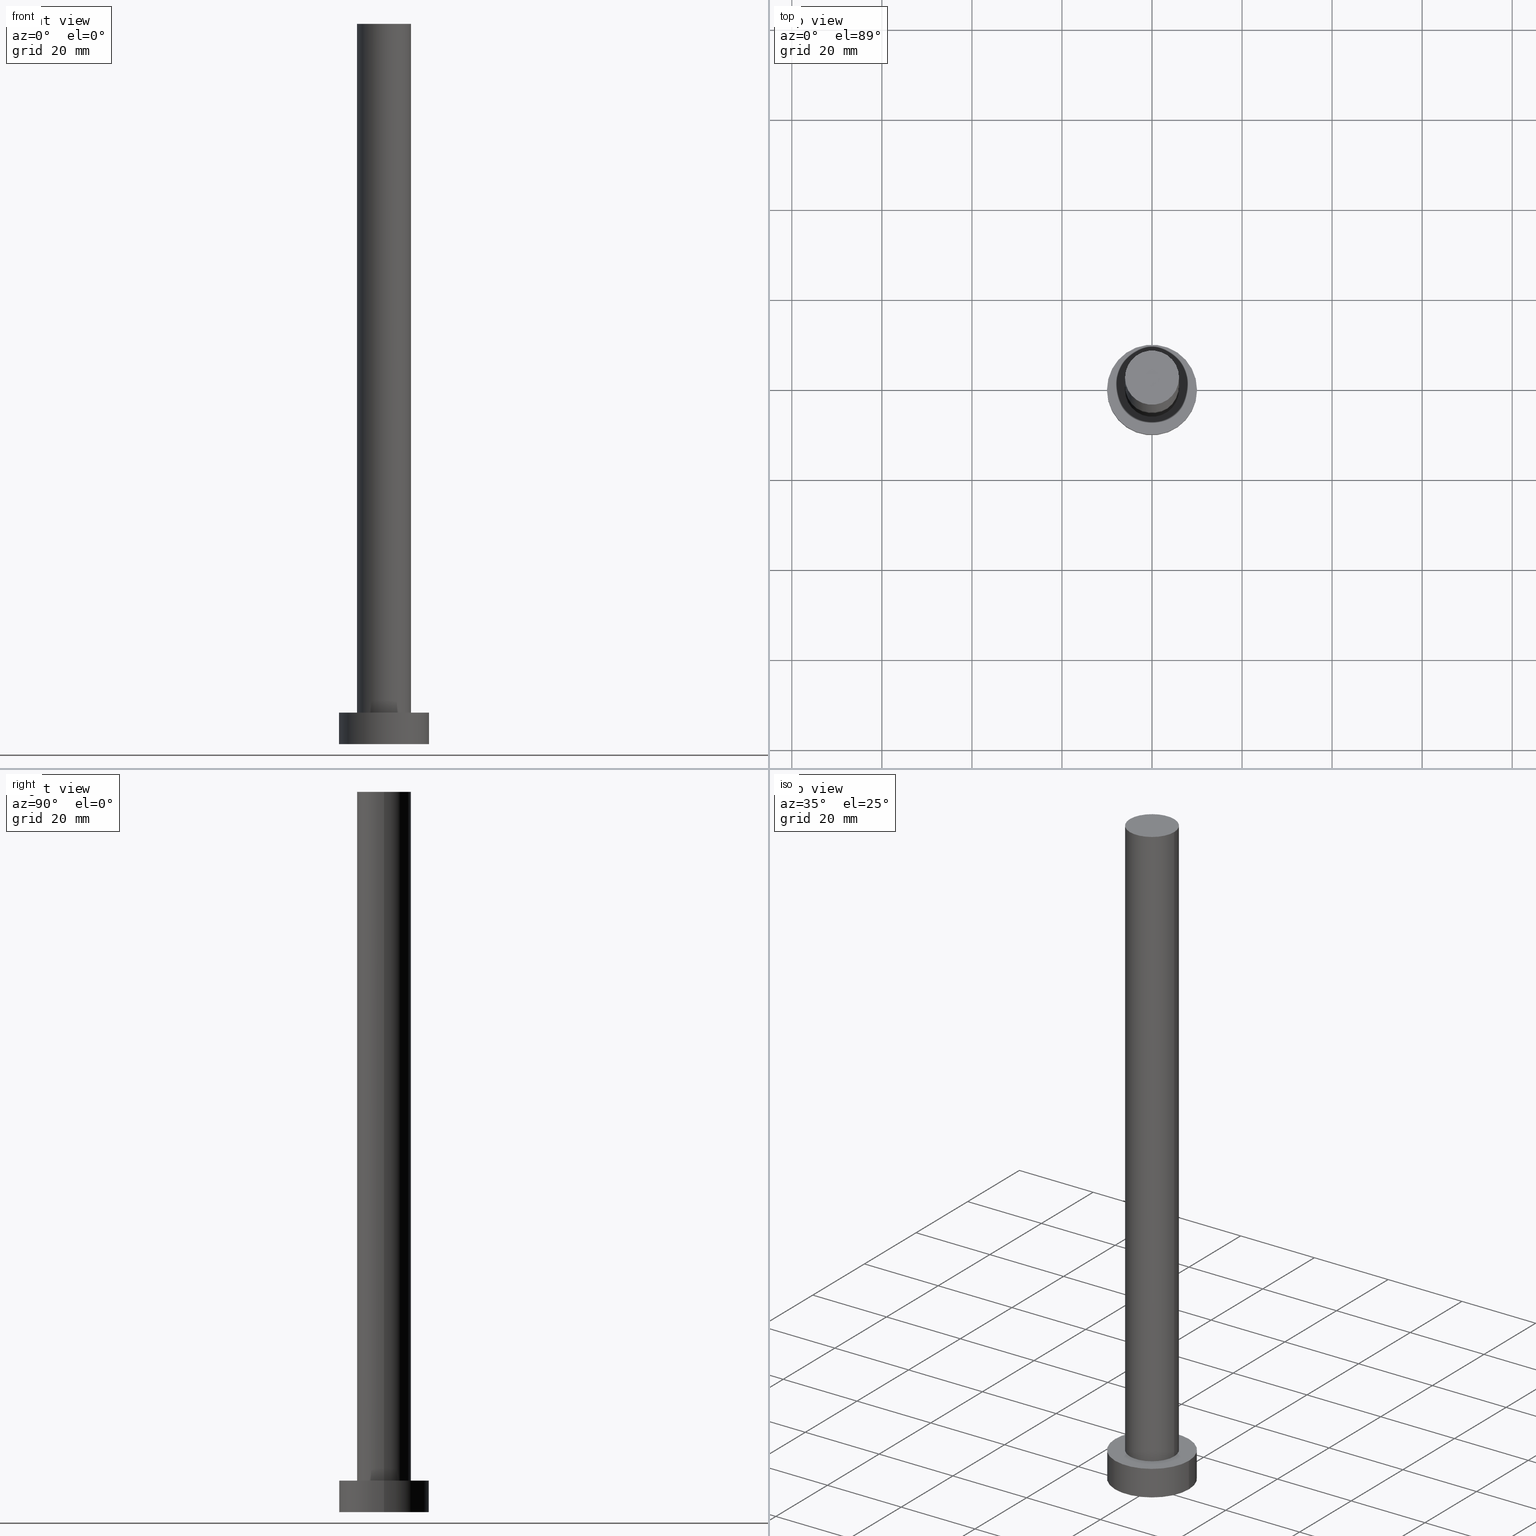
[diagram: canonical four-view strip — front | top / right | iso, engineering-drawing reading convention]
A machine part, canonical four-view strip (front | top / right | iso — engineering-drawing reading convention). The complete STEP part file that produces these views, byte-faithful:
ISO-10303-21;
HEADER;
FILE_DESCRIPTION (( 'STEP AP203' ),
    '1' );
FILE_NAME ('d720.STEP',
    '2023-02-13T10:20:29',
    ( '' ),
    ( '' ),
    'SwSTEP 2.0',
    'SolidWorks 2019',
    '' );
FILE_SCHEMA (( 'CONFIG_CONTROL_DESIGN' ));
ENDSEC;

DATA;
#1 = APPROVAL_STATUS ( 'not_yet_approved' ) ;
#2 = APPROVAL_PERSON_ORGANIZATION ( #26, #76, #180 ) ;
#3 = APPLICATION_PROTOCOL_DEFINITION ( 'international standard', 'config_control_design', 1994, #116 ) ;
#4 = EDGE_CURVE ( 'NONE', #73, #37, #68, .T. ) ;
#5 = ADVANCED_BREP_SHAPE_REPRESENTATION ( 'd720', ( #209, #8 ), #221 ) ;
#6 = ORIENTED_EDGE ( 'NONE', *, *, #193, .T. ) ;
#7 = CIRCLE ( 'NONE', #80, 10.00000000000000000 ) ;
#8 = AXIS2_PLACEMENT_3D ( 'NONE', #204, #49, #47 ) ;
#9 = ORIENTED_EDGE ( 'NONE', *, *, #122, .T. ) ;
#10 = LOCAL_TIME ( 11, 20, 29.00000000000000000, #214 ) ;
#11 = ORIENTED_EDGE ( 'NONE', *, *, #157, .F. ) ;
#12 = ORIENTED_EDGE ( 'NONE', *, *, #110, .F. ) ;
#13 = EDGE_CURVE ( 'NONE', #92, #37, #130, .T. ) ;
#14 = DIRECTION ( 'NONE',  ( 1.000000000000000000, 0.000000000000000000, 0.000000000000000000 ) ) ;
#15 = SECURITY_CLASSIFICATION_LEVEL ( 'unclassified' ) ;
#16 = FACE_OUTER_BOUND ( 'NONE', #248, .T. ) ;
#17 = PERSON_AND_ORGANIZATION_ROLE ( 'creator' ) ;
#18 = PRODUCT_DEFINITION ( 'NEZN�M�', '', #159, #141 ) ;
#19 = DIRECTION ( 'NONE',  ( 1.000000000000000000, 0.000000000000000000, 0.000000000000000000 ) ) ;
#20 = UNCERTAINTY_MEASURE_WITH_UNIT (LENGTH_MEASURE( 1.000000000000000082E-05 ), #163, 'distance_accuracy_value', 'NONE');
#21 = DIRECTION ( 'NONE',  ( 1.000000000000000000, 0.000000000000000000, -0.000000000000000000 ) ) ;
#22 = CIRCLE ( 'NONE', #55, 6.000000000000000888 ) ;
#23 = APPROVAL_PERSON_ORGANIZATION ( #196, #207, #201 ) ;
#24 = DIRECTION ( 'NONE',  ( 0.000000000000000000, 0.000000000000000000, 1.000000000000000000 ) ) ;
#25 = PERSON_AND_ORGANIZATION_ROLE ( 'classification_officer' ) ;
#26 = PERSON_AND_ORGANIZATION ( #243, #31 ) ;
#27 = APPROVAL_STATUS ( 'not_yet_approved' ) ;
#28 = DIRECTION ( 'NONE',  ( -0.000000000000000000, -0.000000000000000000, -1.000000000000000000 ) ) ;
#29 = EDGE_CURVE ( 'NONE', #108, #170, #7, .T. ) ;
#30 = CIRCLE ( 'NONE', #174, 6.000000000000000888 ) ;
#31 = ORGANIZATION ( 'NEUR�EN�', 'NEUR�EN�', '' ) ;
#32 = CC_DESIGN_PERSON_AND_ORGANIZATION_ASSIGNMENT ( #135, #235, ( #159 ) ) ;
#33 = EDGE_LOOP ( 'NONE', ( #228, #152, #6, #250 ) ) ;
#34 = ORIENTED_EDGE ( 'NONE', *, *, #102, .F. ) ;
#35 = DIRECTION ( 'NONE',  ( 0.000000000000000000, 0.000000000000000000, 1.000000000000000000 ) ) ;
#37 = VERTEX_POINT ( 'NONE', #96 ) ;
#36 = EDGE_CURVE ( 'NONE', #72, #185, #244, .T. ) ;
#38 = DIRECTION ( 'NONE',  ( 0.000000000000000000, 0.000000000000000000, 1.000000000000000000 ) ) ;
#39 = DIRECTION ( 'NONE',  ( 1.000000000000000000, 0.000000000000000000, -0.000000000000000000 ) ) ;
#40 = COORDINATED_UNIVERSAL_TIME_OFFSET ( 1, 0, .AHEAD. ) ;
#41 = PLANE ( 'NONE',  #165 ) ;
#42 = DIRECTION ( 'NONE',  ( -0.000000000000000000, -0.000000000000000000, -1.000000000000000000 ) ) ;
#43 = ADVANCED_FACE ( 'NONE', ( #16 ), #175, .F. ) ;
#44 = CALENDAR_DATE ( 2023, 13, 2 ) ;
#45 = DATE_TIME_ROLE ( 'classification_date' ) ;
#46 = PRODUCT_RELATED_PRODUCT_CATEGORY ( 'detail', '', ( #188 ) ) ;
#47 = DIRECTION ( 'NONE',  ( 1.000000000000000000, 0.000000000000000000, 0.000000000000000000 ) ) ;
#48 = AXIS2_PLACEMENT_3D ( 'NONE', #99, #176, #253 ) ;
#49 = DIRECTION ( 'NONE',  ( 0.000000000000000000, 0.000000000000000000, 1.000000000000000000 ) ) ;
#50 = EDGE_LOOP ( 'NONE', ( #249, #230, #54, #148 ) ) ;
#51 = DIRECTION ( 'NONE',  ( 0.000000000000000000, 0.000000000000000000, 1.000000000000000000 ) ) ;
#52 = CC_DESIGN_PERSON_AND_ORGANIZATION_ASSIGNMENT ( #219, #17, ( #18 ) ) ;
#53 = ORIENTED_EDGE ( 'NONE', *, *, #66, .T. ) ;
#54 = ORIENTED_EDGE ( 'NONE', *, *, #4, .T. ) ;
#55 = AXIS2_PLACEMENT_3D ( 'NONE', #238, #38, #115 ) ;
#56 = ADVANCED_FACE ( 'NONE', ( #103, #123 ), #41, .T. ) ;
#57 = CC_DESIGN_APPROVAL ( #93, ( #161 ) ) ;
#58 = ORIENTED_EDGE ( 'NONE', *, *, #29, .F. ) ;
#59 = CARTESIAN_POINT ( 'NONE',  ( 0.000000000000000000, 0.000000000000000000, 160.0000000000000000 ) ) ;
#60 = CARTESIAN_POINT ( 'NONE',  ( 0.000000000000000000, 0.000000000000000000, 7.000000000000000000 ) ) ;
#61 = DATE_AND_TIME ( #145, #187 ) ;
#62 = FACE_OUTER_BOUND ( 'NONE', #50, .T. ) ;
#63 = DIRECTION ( 'NONE',  ( 1.000000000000000000, 0.000000000000000000, 0.000000000000000000 ) ) ;
#64 = LINE ( 'NONE', #154, #65 ) ;
#65 = VECTOR ( 'NONE', #42, 1000.000000000000000 ) ;
#66 = EDGE_CURVE ( 'NONE', #92, #206, #30, .T. ) ;
#67 = PERSON_AND_ORGANIZATION_ROLE ( 'design_supplier' ) ;
#68 = CIRCLE ( 'NONE', #143, 6.000000000000000888 ) ;
#69 = PERSON_AND_ORGANIZATION ( #243, #31 ) ;
#70 = CARTESIAN_POINT ( 'NONE',  ( 0.000000000000000000, 0.000000000000000000, 7.000000000000000000 ) ) ;
#71 = ORIENTED_EDGE ( 'NONE', *, *, #146, .F. ) ;
#72 = VERTEX_POINT ( 'NONE', #255 ) ;
#73 = VERTEX_POINT ( 'NONE', #162 ) ;
#74 = EDGE_LOOP ( 'NONE', ( #12, #169 ) ) ;
#75 = DIRECTION ( 'NONE',  ( 0.000000000000000000, 0.000000000000000000, 1.000000000000000000 ) ) ;
#76 = APPROVAL ( #155, 'NEUR�EN�' ) ;
#77 = DIRECTION ( 'NONE',  ( 1.000000000000000000, 0.000000000000000000, 0.000000000000000000 ) ) ;
#78 = APPROVAL_DATE_TIME ( #86, #207 ) ;
#79 = CARTESIAN_POINT ( 'NONE',  ( -10.00000000000000000, 0.000000000000000000, 7.000000000000000000 ) ) ;
#80 = AXIS2_PLACEMENT_3D ( 'NONE', #208, #35, #134 ) ;
#81 = CARTESIAN_POINT ( 'NONE',  ( 0.000000000000000000, 0.000000000000000000, 7.000000000000000000 ) ) ;
#82 = LOCAL_TIME ( 11, 20, 29.00000000000000000, #181 ) ;
#83 = APPLICATION_CONTEXT ( 'configuration controlled 3d designs of mechanical parts and assemblies' ) ;
#84 = PLANE ( 'NONE',  #240 ) ;
#85 = APPROVAL_DATE_TIME ( #242, #76 ) ;
#86 = DATE_AND_TIME ( #118, #82 ) ;
#87 = DATE_TIME_ROLE ( 'creation_date' ) ;
#88 = DIRECTION ( 'NONE',  ( -0.000000000000000000, -0.000000000000000000, -1.000000000000000000 ) ) ;
#89 = AXIS2_PLACEMENT_3D ( 'NONE', #245, #88, #168 ) ;
#90 = CYLINDRICAL_SURFACE ( 'NONE', #89, 10.00000000000000000 ) ;
#91 = EDGE_LOOP ( 'NONE', ( #53, #131 ) ) ;
#92 = VERTEX_POINT ( 'NONE', #197 ) ;
#94 = DIRECTION ( 'NONE',  ( -0.000000000000000000, -0.000000000000000000, -1.000000000000000000 ) ) ;
#93 = APPROVAL ( #1, 'NEUR�EN�' ) ;
#95 = ORIENTED_EDGE ( 'NONE', *, *, #102, .T. ) ;
#96 = CARTESIAN_POINT ( 'NONE',  ( -6.000000000000000888, 0.000000000000000000, 7.000000000000000000 ) ) ;
#97 = ADVANCED_FACE ( 'NONE', ( #119 ), #84, .T. ) ;
#98 = CYLINDRICAL_SURFACE ( 'NONE', #48, 6.000000000000000888 ) ;
#99 = CARTESIAN_POINT ( 'NONE',  ( 0.000000000000000000, 0.000000000000000000, 160.0000000000000000 ) ) ;
#100 = APPROVAL_PERSON_ORGANIZATION ( #105, #93, #137 ) ;
#101 = DIRECTION ( 'NONE',  ( -0.000000000000000000, -0.000000000000000000, -1.000000000000000000 ) ) ;
#102 = EDGE_CURVE ( 'NONE', #185, #72, #220, .T. ) ;
#103 = FACE_BOUND ( 'NONE', #74, .T. ) ;
#104 = DATE_AND_TIME ( #182, #167 ) ;
#105 = PERSON_AND_ORGANIZATION ( #243, #31 ) ;
#106 = MECHANICAL_CONTEXT ( 'NONE', #83, 'mechanical' ) ;
#107 =( NAMED_UNIT ( * ) SI_UNIT ( $, .STERADIAN. ) SOLID_ANGLE_UNIT ( ) );
#108 = VERTEX_POINT ( 'NONE', #178 ) ;
#109 = ORIENTED_EDGE ( 'NONE', *, *, #66, .F. ) ;
#110 = EDGE_CURVE ( 'NONE', #37, #73, #192, .T. ) ;
#111 = ORIENTED_EDGE ( 'NONE', *, *, #13, .T. ) ;
#112 = VECTOR ( 'NONE', #94, 1000.000000000000000 ) ;
#113 = VECTOR ( 'NONE', #156, 1000.000000000000000 ) ;
#114 = EDGE_LOOP ( 'NONE', ( #34, #9, #150, #132 ) ) ;
#115 = DIRECTION ( 'NONE',  ( 1.000000000000000000, 0.000000000000000000, 0.000000000000000000 ) ) ;
#116 = APPLICATION_CONTEXT ( 'configuration controlled 3d designs of mechanical parts and assemblies' ) ;
#117 = AXIS2_PLACEMENT_3D ( 'NONE', #60, #215, #63 ) ;
#118 = CALENDAR_DATE ( 2023, 13, 2 ) ;
#119 = FACE_OUTER_BOUND ( 'NONE', #91, .T. ) ;
#120 = COORDINATED_UNIVERSAL_TIME_OFFSET ( 1, 0, .AHEAD. ) ;
#121 = CYLINDRICAL_SURFACE ( 'NONE', #205, 6.000000000000000888 ) ;
#122 = EDGE_CURVE ( 'NONE', #185, #170, #217, .T. ) ;
#123 = FACE_OUTER_BOUND ( 'NONE', #210, .T. ) ;
#124 = LOCAL_TIME ( 11, 20, 29.00000000000000000, #233 ) ;
#125 = CARTESIAN_POINT ( 'NONE',  ( 10.00000000000000000, 1.224646799147353256E-15, 7.000000000000000000 ) ) ;
#126 = CALENDAR_DATE ( 2023, 13, 2 ) ;
#127 = CC_DESIGN_APPROVAL ( #76, ( #159 ) ) ;
#128 = APPLICATION_PROTOCOL_DEFINITION ( 'international standard', 'config_control_design', 1994, #83 ) ;
#129 = AXIS2_PLACEMENT_3D ( 'NONE', #81, #254, #77 ) ;
#130 = LINE ( 'NONE', #172, #112 ) ;
#131 = ORIENTED_EDGE ( 'NONE', *, *, #144, .T. ) ;
#132 = ORIENTED_EDGE ( 'NONE', *, *, #193, .F. ) ;
#133 = VECTOR ( 'NONE', #101, 1000.000000000000000 ) ;
#134 = DIRECTION ( 'NONE',  ( 1.000000000000000000, 0.000000000000000000, 0.000000000000000000 ) ) ;
#135 = PERSON_AND_ORGANIZATION ( #243, #31 ) ;
#136 = DIRECTION ( 'NONE',  ( -1.000000000000000000, 0.000000000000000000, 0.000000000000000000 ) ) ;
#137 = APPROVAL_ROLE ( '' ) ;
#138 = FACE_OUTER_BOUND ( 'NONE', #114, .T. ) ;
#139 = CC_DESIGN_PERSON_AND_ORGANIZATION_ASSIGNMENT ( #212, #25, ( #161 ) ) ;
#140 = CARTESIAN_POINT ( 'NONE',  ( 0.000000000000000000, 0.000000000000000000, 160.0000000000000000 ) ) ;
#141 = DESIGN_CONTEXT ( 'detailed design', #116, 'design' ) ;
#142 = DIRECTION ( 'NONE',  ( 1.000000000000000000, 0.000000000000000000, 0.000000000000000000 ) ) ;
#143 = AXIS2_PLACEMENT_3D ( 'NONE', #149, #51, #186 ) ;
#144 = EDGE_CURVE ( 'NONE', #206, #92, #22, .T. ) ;
#145 = CALENDAR_DATE ( 2023, 13, 2 ) ;
#146 = EDGE_CURVE ( 'NONE', #206, #73, #64, .T. ) ;
#147 = PERSON_AND_ORGANIZATION_ROLE ( 'design_owner' ) ;
#148 = ORIENTED_EDGE ( 'NONE', *, *, #13, .F. ) ;
#149 = CARTESIAN_POINT ( 'NONE',  ( 0.000000000000000000, 0.000000000000000000, 7.000000000000000000 ) ) ;
#150 = ORIENTED_EDGE ( 'NONE', *, *, #157, .T. ) ;
#151 = PRODUCT_DEFINITION_SHAPE ( 'NONE', 'NONE',  #18 ) ;
#152 = ORIENTED_EDGE ( 'NONE', *, *, #36, .F. ) ;
#153 = CARTESIAN_POINT ( 'NONE',  ( 0.000000000000000000, 0.000000000000000000, 7.000000000000000000 ) ) ;
#154 = CARTESIAN_POINT ( 'NONE',  ( 6.000000000000000888, 7.347880794884120722E-16, 160.0000000000000000 ) ) ;
#155 = APPROVAL_STATUS ( 'not_yet_approved' ) ;
#156 = DIRECTION ( 'NONE',  ( -0.000000000000000000, -0.000000000000000000, -1.000000000000000000 ) ) ;
#157 = EDGE_CURVE ( 'NONE', #170, #108, #231, .T. ) ;
#158 = AXIS2_PLACEMENT_3D ( 'NONE', #211, #75, #39 ) ;
#159 = PRODUCT_DEFINITION_FORMATION_WITH_SPECIFIED_SOURCE ( 'LIBOVOLN�', '', #188, .NOT_KNOWN. ) ;
#160 = LINE ( 'NONE', #79, #113 ) ;
#161 = SECURITY_CLASSIFICATION ( '', '', #15 ) ;
#162 = CARTESIAN_POINT ( 'NONE',  ( 6.000000000000000888, 7.347880794884120722E-16, 7.000000000000000000 ) ) ;
#163 =( LENGTH_UNIT ( ) NAMED_UNIT ( * ) SI_UNIT ( .MILLI., .METRE. ) );
#164 = APPROVAL_DATE_TIME ( #104, #93 ) ;
#165 = AXIS2_PLACEMENT_3D ( 'NONE', #153, #24, #198 ) ;
#166 = CC_DESIGN_PERSON_AND_ORGANIZATION_ASSIGNMENT ( #69, #147, ( #188 ) ) ;
#167 = LOCAL_TIME ( 11, 20, 29.00000000000000000, #40 ) ;
#168 = DIRECTION ( 'NONE',  ( -1.000000000000000000, 0.000000000000000000, 0.000000000000000000 ) ) ;
#169 = ORIENTED_EDGE ( 'NONE', *, *, #4, .F. ) ;
#170 = VERTEX_POINT ( 'NONE', #213 ) ;
#171 = AXIS2_PLACEMENT_3D ( 'NONE', #234, #191, #142 ) ;
#172 = CARTESIAN_POINT ( 'NONE',  ( -6.000000000000000888, 0.000000000000000000, 160.0000000000000000 ) ) ;
#173 = EDGE_LOOP ( 'NONE', ( #71, #109, #111, #190 ) ) ;
#174 = AXIS2_PLACEMENT_3D ( 'NONE', #59, #232, #19 ) ;
#175 = PLANE ( 'NONE',  #158 ) ;
#176 = DIRECTION ( 'NONE',  ( -0.000000000000000000, -0.000000000000000000, -1.000000000000000000 ) ) ;
#177 = DIRECTION ( 'NONE',  ( 0.000000000000000000, 0.000000000000000000, 1.000000000000000000 ) ) ;
#178 = CARTESIAN_POINT ( 'NONE',  ( -10.00000000000000000, 0.000000000000000000, 0.000000000000000000 ) ) ;
#179 = DIRECTION ( 'NONE',  ( -0.000000000000000000, -0.000000000000000000, -1.000000000000000000 ) ) ;
#180 = APPROVAL_ROLE ( '' ) ;
#181 = COORDINATED_UNIVERSAL_TIME_OFFSET ( 1, 0, .AHEAD. ) ;
#182 = CALENDAR_DATE ( 2023, 13, 2 ) ;
#183 = DIRECTION ( 'NONE',  ( -1.000000000000000000, 0.000000000000000000, 0.000000000000000000 ) ) ;
#184 = ADVANCED_FACE ( 'NONE', ( #200 ), #121, .T. ) ;
#185 = VERTEX_POINT ( 'NONE', #195 ) ;
#186 = DIRECTION ( 'NONE',  ( 1.000000000000000000, 0.000000000000000000, 0.000000000000000000 ) ) ;
#187 = LOCAL_TIME ( 11, 20, 29.00000000000000000, #120 ) ;
#188 = PRODUCT ( 'd720', 'd720', '', ( #106 ) ) ;
#189 = ADVANCED_FACE ( 'NONE', ( #62 ), #98, .T. ) ;
#190 = ORIENTED_EDGE ( 'NONE', *, *, #110, .T. ) ;
#191 = DIRECTION ( 'NONE',  ( 0.000000000000000000, 0.000000000000000000, 1.000000000000000000 ) ) ;
#192 = CIRCLE ( 'NONE', #117, 6.000000000000000888 ) ;
#193 = EDGE_CURVE ( 'NONE', #72, #108, #160, .T. ) ;
#194 = PERSON_AND_ORGANIZATION ( #243, #31 ) ;
#195 = CARTESIAN_POINT ( 'NONE',  ( 10.00000000000000000, 1.224646799147353256E-15, 7.000000000000000000 ) ) ;
#196 = PERSON_AND_ORGANIZATION ( #243, #31 ) ;
#197 = CARTESIAN_POINT ( 'NONE',  ( -6.000000000000000888, 0.000000000000000000, 160.0000000000000000 ) ) ;
#198 = DIRECTION ( 'NONE',  ( 1.000000000000000000, 0.000000000000000000, -0.000000000000000000 ) ) ;
#199 = CC_DESIGN_SECURITY_CLASSIFICATION ( #161, ( #159 ) ) ;
#200 = FACE_OUTER_BOUND ( 'NONE', #173, .T. ) ;
#201 = APPROVAL_ROLE ( '' ) ;
#202 = DATE_AND_TIME ( #126, #124 ) ;
#203 = AXIS2_PLACEMENT_3D ( 'NONE', #70, #28, #183 ) ;
#204 = CARTESIAN_POINT ( 'NONE',  ( 0.000000000000000000, 0.000000000000000000, 0.000000000000000000 ) ) ;
#205 = AXIS2_PLACEMENT_3D ( 'NONE', #140, #179, #136 ) ;
#206 = VERTEX_POINT ( 'NONE', #236 ) ;
#207 = APPROVAL ( #27, 'NEUR�EN�' ) ;
#208 = CARTESIAN_POINT ( 'NONE',  ( 0.000000000000000000, 0.000000000000000000, 0.000000000000000000 ) ) ;
#209 = MANIFOLD_SOLID_BREP ( 'P�idat vysunut�m3', #229 ) ;
#210 = EDGE_LOOP ( 'NONE', ( #226, #95 ) ) ;
#211 = CARTESIAN_POINT ( 'NONE',  ( 0.000000000000000000, 0.000000000000000000, 0.000000000000000000 ) ) ;
#212 = PERSON_AND_ORGANIZATION ( #243, #31 ) ;
#213 = CARTESIAN_POINT ( 'NONE',  ( 10.00000000000000000, 1.224646799147353256E-15, 0.000000000000000000 ) ) ;
#214 = COORDINATED_UNIVERSAL_TIME_OFFSET ( 1, 0, .AHEAD. ) ;
#215 = DIRECTION ( 'NONE',  ( 0.000000000000000000, 0.000000000000000000, 1.000000000000000000 ) ) ;
#216 = DIRECTION ( 'NONE',  ( 0.000000000000000000, 0.000000000000000000, 1.000000000000000000 ) ) ;
#217 = LINE ( 'NONE', #125, #133 ) ;
#218 = CC_DESIGN_DATE_AND_TIME_ASSIGNMENT ( #61, #45, ( #161 ) ) ;
#219 = PERSON_AND_ORGANIZATION ( #243, #31 ) ;
#220 = CIRCLE ( 'NONE', #129, 10.00000000000000000 ) ;
#221 =( GEOMETRIC_REPRESENTATION_CONTEXT ( 3 ) GLOBAL_UNCERTAINTY_ASSIGNED_CONTEXT ( ( #20 ) ) GLOBAL_UNIT_ASSIGNED_CONTEXT ( ( #163, #247, #107 ) ) REPRESENTATION_CONTEXT ( 'NONE', 'WORKASPACE' ) );
#222 = CYLINDRICAL_SURFACE ( 'NONE', #203, 10.00000000000000000 ) ;
#223 = FACE_OUTER_BOUND ( 'NONE', #33, .T. ) ;
#224 = ADVANCED_FACE ( 'NONE', ( #138 ), #222, .T. ) ;
#225 = AXIS2_PLACEMENT_3D ( 'NONE', #237, #216, #14 ) ;
#226 = ORIENTED_EDGE ( 'NONE', *, *, #36, .T. ) ;
#227 = CC_DESIGN_DATE_AND_TIME_ASSIGNMENT ( #202, #87, ( #18 ) ) ;
#228 = ORIENTED_EDGE ( 'NONE', *, *, #122, .F. ) ;
#229 = CLOSED_SHELL ( 'NONE', ( #189, #224, #251, #56, #43, #184, #97 ) ) ;
#230 = ORIENTED_EDGE ( 'NONE', *, *, #146, .T. ) ;
#231 = CIRCLE ( 'NONE', #171, 10.00000000000000000 ) ;
#232 = DIRECTION ( 'NONE',  ( 0.000000000000000000, 0.000000000000000000, 1.000000000000000000 ) ) ;
#233 = COORDINATED_UNIVERSAL_TIME_OFFSET ( 1, 0, .AHEAD. ) ;
#234 = CARTESIAN_POINT ( 'NONE',  ( 0.000000000000000000, 0.000000000000000000, 0.000000000000000000 ) ) ;
#235 = PERSON_AND_ORGANIZATION_ROLE ( 'creator' ) ;
#236 = CARTESIAN_POINT ( 'NONE',  ( 6.000000000000000888, 7.347880794884120722E-16, 160.0000000000000000 ) ) ;
#237 = CARTESIAN_POINT ( 'NONE',  ( 0.000000000000000000, 0.000000000000000000, 7.000000000000000000 ) ) ;
#238 = CARTESIAN_POINT ( 'NONE',  ( 0.000000000000000000, 0.000000000000000000, 160.0000000000000000 ) ) ;
#239 = SHAPE_DEFINITION_REPRESENTATION ( #151, #5 ) ;
#240 = AXIS2_PLACEMENT_3D ( 'NONE', #252, #177, #21 ) ;
#241 = CC_DESIGN_PERSON_AND_ORGANIZATION_ASSIGNMENT ( #194, #67, ( #159 ) ) ;
#242 = DATE_AND_TIME ( #44, #10 ) ;
#243 = PERSON ( 'NEUR�EN�', 'NEUR�EN�', 'NEUR�EN�', ('NEUR�EN�'), ('NEUR�EN�'), ('NEUR�EN�') ) ;
#244 = CIRCLE ( 'NONE', #225, 10.00000000000000000 ) ;
#245 = CARTESIAN_POINT ( 'NONE',  ( 0.000000000000000000, 0.000000000000000000, 7.000000000000000000 ) ) ;
#246 = CC_DESIGN_APPROVAL ( #207, ( #18 ) ) ;
#247 =( NAMED_UNIT ( * ) PLANE_ANGLE_UNIT ( ) SI_UNIT ( $, .RADIAN. ) );
#248 = EDGE_LOOP ( 'NONE', ( #58, #11 ) ) ;
#249 = ORIENTED_EDGE ( 'NONE', *, *, #144, .F. ) ;
#250 = ORIENTED_EDGE ( 'NONE', *, *, #29, .T. ) ;
#251 = ADVANCED_FACE ( 'NONE', ( #223 ), #90, .T. ) ;
#252 = CARTESIAN_POINT ( 'NONE',  ( 0.000000000000000000, 0.000000000000000000, 160.0000000000000000 ) ) ;
#253 = DIRECTION ( 'NONE',  ( -1.000000000000000000, 0.000000000000000000, 0.000000000000000000 ) ) ;
#254 = DIRECTION ( 'NONE',  ( 0.000000000000000000, 0.000000000000000000, 1.000000000000000000 ) ) ;
#255 = CARTESIAN_POINT ( 'NONE',  ( -10.00000000000000000, 0.000000000000000000, 7.000000000000000000 ) ) ;
ENDSEC;
END-ISO-10303-21;
